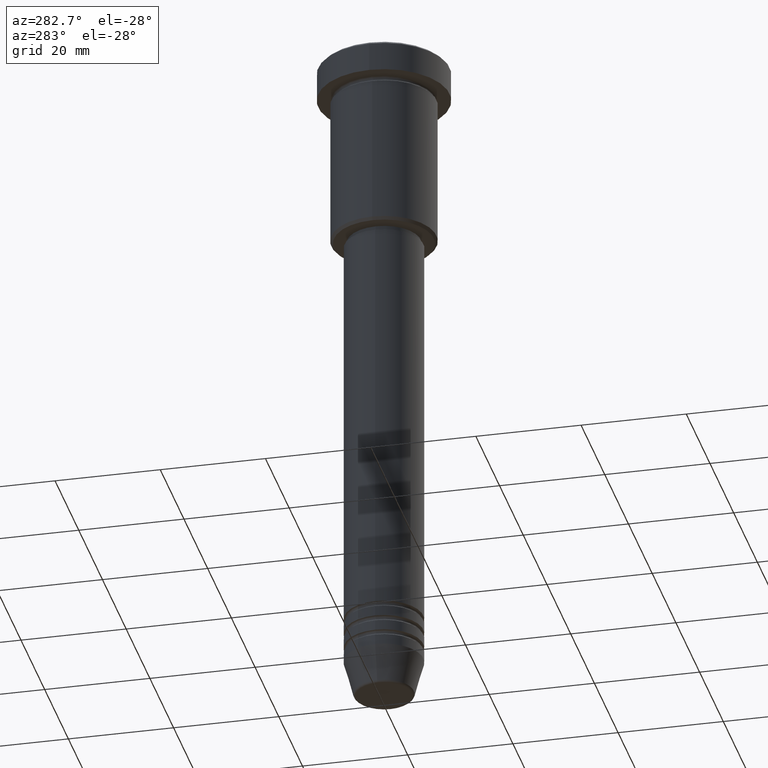
[diagram: clean part render]
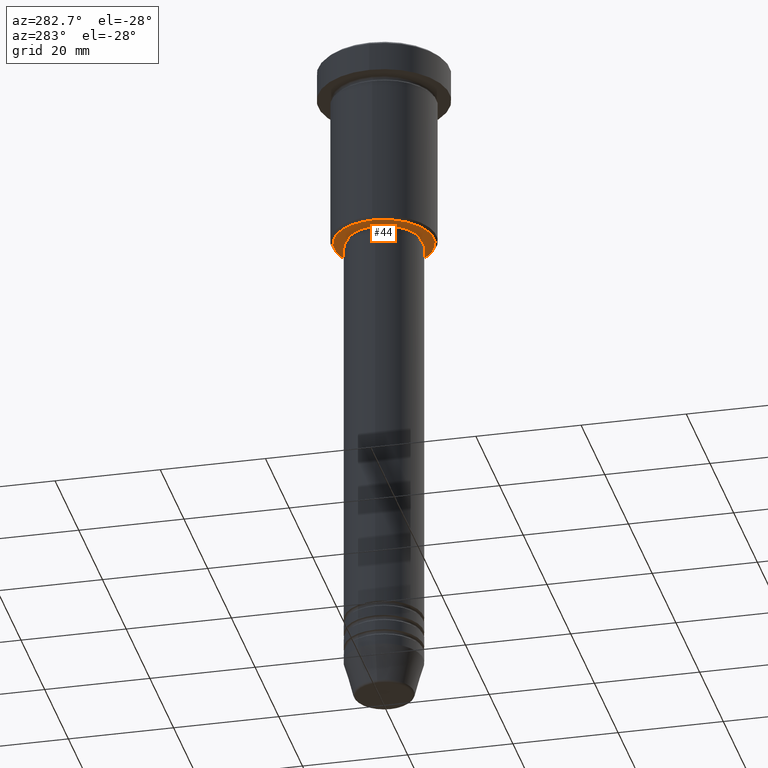
[diagram: same view with one face highlighted and labeled with its STEP entity id]
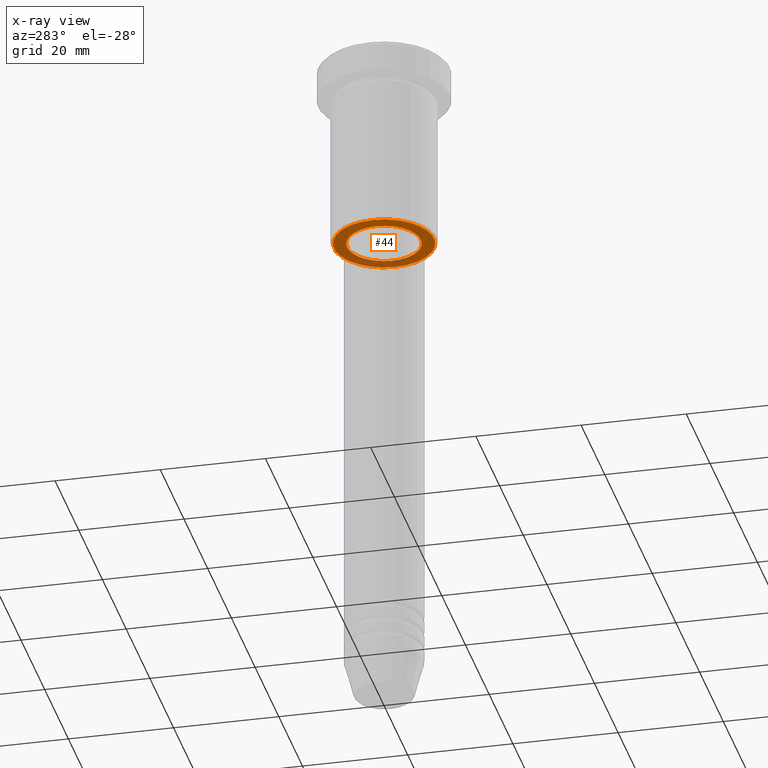
[diagram: x-ray of the same camera — body ghosted, the highlighted face saturated]
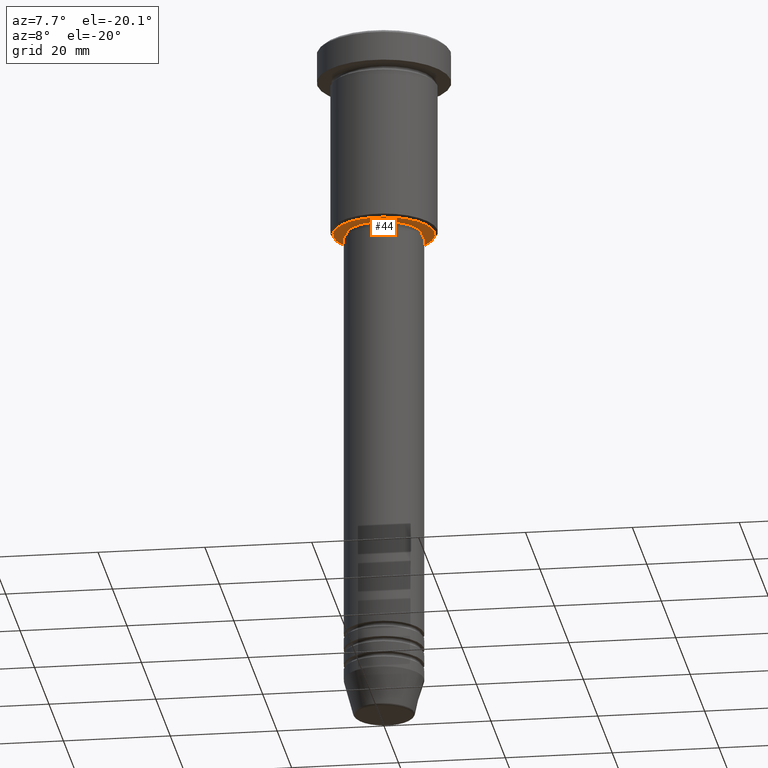
[diagram: same view with one face highlighted and labeled with its STEP entity id]
A machine part, auxiliary view. The second image highlights one B-rep face of the part: STEP entity #44.
The next image is the same camera in x-ray: the body ghosted, the highlighted face saturated — about 20% of this face is hidden behind the body in this view.
A second angle (auxiliary view) of the same face is appended — the face is thin or edge-on in the first view.
In plain terms, the highlighted planar face has unit normal (0, 0, -1).
Its self-contained STEP definition (entity closure, byte-faithful):
#18 = DIRECTION ( 'NONE',  ( 1.000000000000000000, 0.000000000000000000, 0.000000000000000000 ) ) ;
#44 = ADVANCED_FACE ( 'NONE', ( #408, #240 ), #64, .T. ) ;
#64 = PLANE ( 'NONE',  #987 ) ;
#116 = EDGE_LOOP ( 'NONE', ( #892, #404 ) ) ;
#122 = DIRECTION ( 'NONE',  ( 1.000000000000000000, 0.000000000000000000, 0.000000000000000000 ) ) ;
#240 = FACE_BOUND ( 'NONE', #1135, .T. ) ;
#255 = DIRECTION ( 'NONE',  ( 0.000000000000000000, 0.000000000000000000, -1.000000000000000000 ) ) ;
#289 = VERTEX_POINT ( 'NONE', #729 ) ;
#324 = CARTESIAN_POINT ( 'NONE',  ( 0.000000000000000000, 10.00000000000000000, -35.99999999999999289 ) ) ;
#401 = ORIENTED_EDGE ( 'NONE', *, *, #658, .T. ) ;
#404 = ORIENTED_EDGE ( 'NONE', *, *, #462, .T. ) ;
#405 = CARTESIAN_POINT ( 'NONE',  ( 0.000000000000000000, 0.000000000000000000, -35.99999999999999289 ) ) ;
#408 = FACE_OUTER_BOUND ( 'NONE', #116, .T. ) ;
#462 = EDGE_CURVE ( 'NONE', #289, #834, #878, .T. ) ;
#463 = CARTESIAN_POINT ( 'NONE',  ( 0.000000000000000000, 0.000000000000000000, -35.99999999999999289 ) ) ;
#488 = CIRCLE ( 'NONE', #758, 9.499999999999980460 ) ;
#514 = DIRECTION ( 'NONE',  ( -1.000000000000000000, 0.000000000000000000, 0.000000000000000000 ) ) ;
#517 = DIRECTION ( 'NONE',  ( 0.000000000000000000, 0.000000000000000000, -1.000000000000000000 ) ) ;
#533 = DIRECTION ( 'NONE',  ( -1.000000000000000000, 0.000000000000000000, 0.000000000000000000 ) ) ;
#563 = CARTESIAN_POINT ( 'NONE',  ( -6.999999999999999112, 8.572527594031472204E-16, -35.99999999999999289 ) ) ;
#590 = AXIS2_PLACEMENT_3D ( 'NONE', #594, #1034, #122 ) ;
#594 = CARTESIAN_POINT ( 'NONE',  ( 0.000000000000000000, 0.000000000000000000, -35.99999999999999289 ) ) ;
#604 = DIRECTION ( 'NONE',  ( -1.000000000000000000, 0.000000000000000000, -0.000000000000000000 ) ) ;
#644 = EDGE_CURVE ( 'NONE', #834, #289, #488, .T. ) ;
#658 = EDGE_CURVE ( 'NONE', #863, #950, #705, .T. ) ;
#667 = CIRCLE ( 'NONE', #590, 6.999999999999999112 ) ;
#705 = CIRCLE ( 'NONE', #1067, 6.999999999999999112 ) ;
#713 = CARTESIAN_POINT ( 'NONE',  ( 0.000000000000000000, 0.000000000000000000, -35.99999999999999289 ) ) ;
#729 = CARTESIAN_POINT ( 'NONE',  ( -9.499999999999980460, 1.194030629168668286E-15, -35.99999999999999289 ) ) ;
#751 = CARTESIAN_POINT ( 'NONE',  ( 6.999999999999999112, 0.000000000000000000, -35.99999999999999289 ) ) ;
#758 = AXIS2_PLACEMENT_3D ( 'NONE', #713, #255, #533 ) ;
#834 = VERTEX_POINT ( 'NONE', #1111 ) ;
#837 = AXIS2_PLACEMENT_3D ( 'NONE', #405, #1151, #514 ) ;
#863 = VERTEX_POINT ( 'NONE', #563 ) ;
#878 = CIRCLE ( 'NONE', #837, 9.499999999999980460 ) ;
#892 = ORIENTED_EDGE ( 'NONE', *, *, #644, .T. ) ;
#950 = VERTEX_POINT ( 'NONE', #751 ) ;
#952 = ORIENTED_EDGE ( 'NONE', *, *, #1141, .T. ) ;
#987 = AXIS2_PLACEMENT_3D ( 'NONE', #324, #517, #604 ) ;
#1034 = DIRECTION ( 'NONE',  ( -0.000000000000000000, -0.000000000000000000, 1.000000000000000000 ) ) ;
#1067 = AXIS2_PLACEMENT_3D ( 'NONE', #463, #1104, #18 ) ;
#1104 = DIRECTION ( 'NONE',  ( -0.000000000000000000, -0.000000000000000000, 1.000000000000000000 ) ) ;
#1111 = CARTESIAN_POINT ( 'NONE',  ( 9.499999999999980460, 0.000000000000000000, -35.99999999999999289 ) ) ;
#1135 = EDGE_LOOP ( 'NONE', ( #952, #401 ) ) ;
#1141 = EDGE_CURVE ( 'NONE', #950, #863, #667, .T. ) ;
#1151 = DIRECTION ( 'NONE',  ( 0.000000000000000000, 0.000000000000000000, -1.000000000000000000 ) ) ;